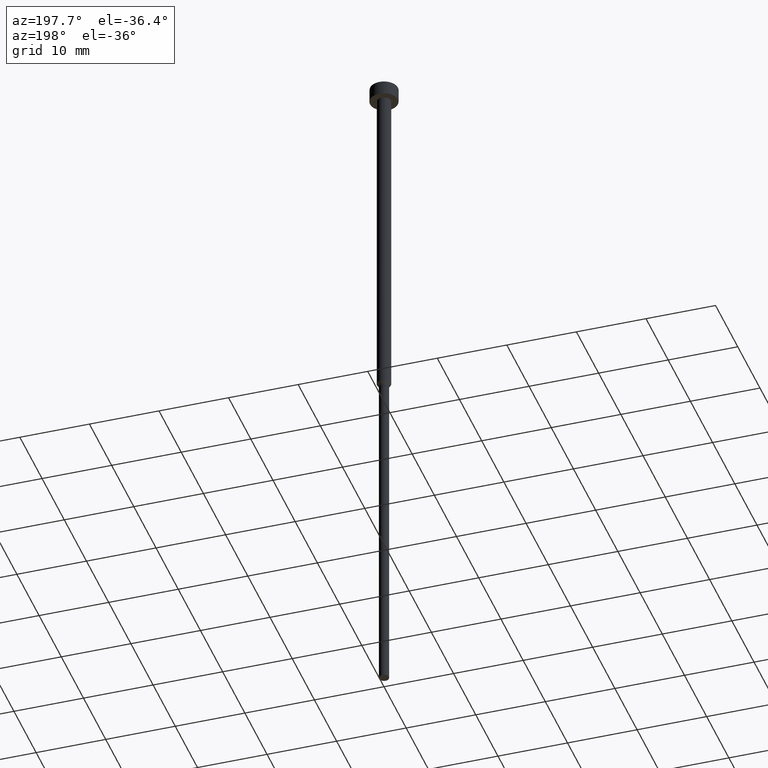
[diagram: clean part render]
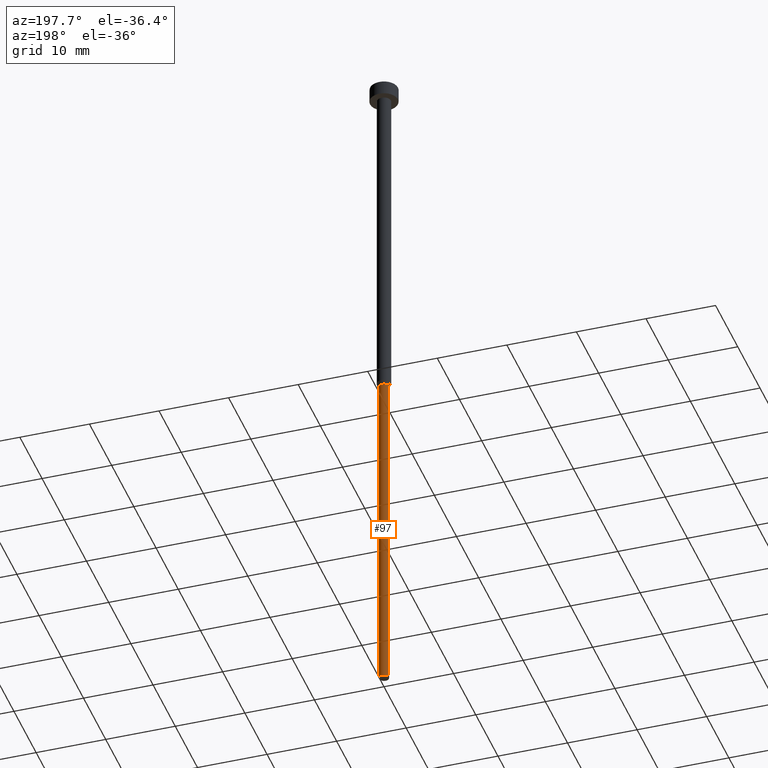
[diagram: same view with one face highlighted and labeled with its STEP entity id]
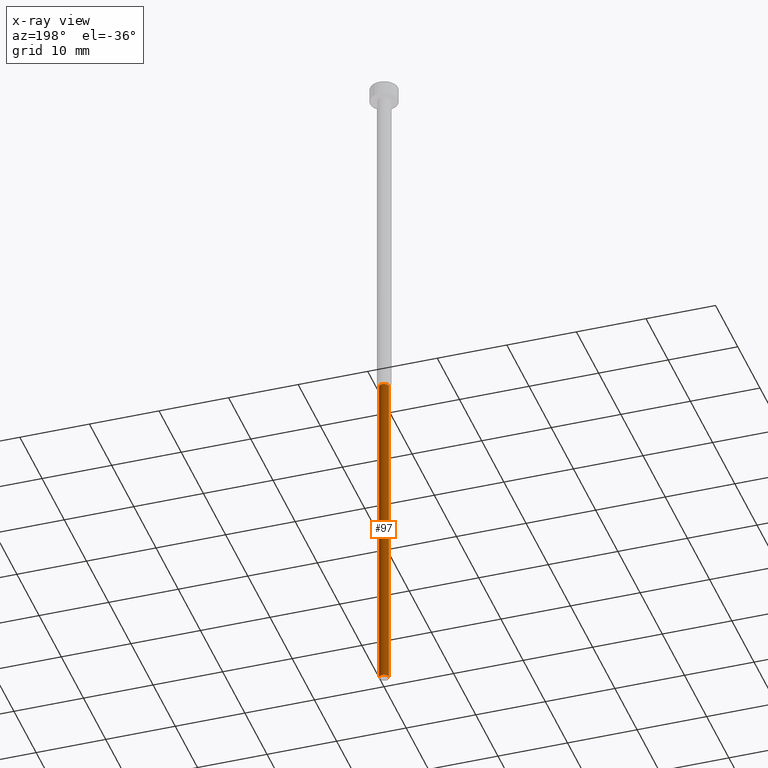
[diagram: x-ray of the same camera — body ghosted, the highlighted face saturated]
A machine part, auxiliary view. The second image highlights one B-rep face of the part: STEP entity #97.
The next image is the same camera in x-ray: the body ghosted, the highlighted face saturated — about 0% of this face is hidden behind the body in this view.
In plain terms, the highlighted cylindrical surface (edge-blend (fillet) strip) has radius 0.7 mm, axis along (-0, -0, 1).
Its self-contained STEP definition (entity closure, byte-faithful):
#1 = LINE ( 'NONE', #105, #323 ) ;
#20 = CARTESIAN_POINT ( 'NONE',  ( -0.6999999999999998446, 8.572527594031470725E-17, -100.0000000000000000 ) ) ;
#29 = CIRCLE ( 'NONE', #174, 0.6999999999999998446 ) ;
#49 = DIRECTION ( 'NONE',  ( 1.000000000000000000, 0.000000000000000000, 0.000000000000000000 ) ) ;
#58 = VECTOR ( 'NONE', #318, 1000.000000000000000 ) ;
#73 = DIRECTION ( 'NONE',  ( -0.000000000000000000, -0.000000000000000000, 1.000000000000000000 ) ) ;
#85 = ORIENTED_EDGE ( 'NONE', *, *, #151, .F. ) ;
#97 = ADVANCED_FACE ( 'NONE', ( #286 ), #204, .T. ) ;
#105 = CARTESIAN_POINT ( 'NONE',  ( -0.6999999999999998446, 8.572527594031470725E-17, 0.000000000000000000 ) ) ;
#115 = VERTEX_POINT ( 'NONE', #348 ) ;
#116 = AXIS2_PLACEMENT_3D ( 'NONE', #313, #187, #130 ) ;
#130 = DIRECTION ( 'NONE',  ( 1.000000000000000000, 0.000000000000000000, 0.000000000000000000 ) ) ;
#134 = VERTEX_POINT ( 'NONE', #183 ) ;
#137 = VERTEX_POINT ( 'NONE', #20 ) ;
#139 = DIRECTION ( 'NONE',  ( -0.000000000000000000, -0.000000000000000000, 1.000000000000000000 ) ) ;
#151 = EDGE_CURVE ( 'NONE', #190, #115, #220, .T. ) ;
#174 = AXIS2_PLACEMENT_3D ( 'NONE', #269, #307, #281 ) ;
#177 = EDGE_CURVE ( 'NONE', #134, #190, #321, .T. ) ;
#178 = ORIENTED_EDGE ( 'NONE', *, *, #349, .T. ) ;
#183 = CARTESIAN_POINT ( 'NONE',  ( 0.6999999999999998446, 0.000000000000000000, -100.0000000000000000 ) ) ;
#187 = DIRECTION ( 'NONE',  ( -0.000000000000000000, -0.000000000000000000, 1.000000000000000000 ) ) ;
#190 = VERTEX_POINT ( 'NONE', #332 ) ;
#202 = EDGE_LOOP ( 'NONE', ( #178, #304, #85, #249 ) ) ;
#204 = CYLINDRICAL_SURFACE ( 'NONE', #116, 0.6999999999999998446 ) ;
#220 = CIRCLE ( 'NONE', #271, 0.6999999999999999556 ) ;
#232 = CARTESIAN_POINT ( 'NONE',  ( 0.6999999999999998446, 0.000000000000000000, 0.000000000000000000 ) ) ;
#249 = ORIENTED_EDGE ( 'NONE', *, *, #177, .F. ) ;
#269 = CARTESIAN_POINT ( 'NONE',  ( 0.000000000000000000, 0.000000000000000000, -100.0000000000000000 ) ) ;
#271 = AXIS2_PLACEMENT_3D ( 'NONE', #314, #73, #49 ) ;
#281 = DIRECTION ( 'NONE',  ( 1.000000000000000000, 0.000000000000000000, 0.000000000000000000 ) ) ;
#286 = FACE_OUTER_BOUND ( 'NONE', #202, .T. ) ;
#304 = ORIENTED_EDGE ( 'NONE', *, *, #327, .T. ) ;
#307 = DIRECTION ( 'NONE',  ( -0.000000000000000000, -0.000000000000000000, 1.000000000000000000 ) ) ;
#313 = CARTESIAN_POINT ( 'NONE',  ( 0.000000000000000000, 0.000000000000000000, 0.000000000000000000 ) ) ;
#314 = CARTESIAN_POINT ( 'NONE',  ( 0.000000000000000000, 0.000000000000000000, -50.51961524227067457 ) ) ;
#318 = DIRECTION ( 'NONE',  ( -0.000000000000000000, -0.000000000000000000, 1.000000000000000000 ) ) ;
#321 = LINE ( 'NONE', #232, #58 ) ;
#323 = VECTOR ( 'NONE', #139, 1000.000000000000000 ) ;
#327 = EDGE_CURVE ( 'NONE', #137, #115, #1, .T. ) ;
#332 = CARTESIAN_POINT ( 'NONE',  ( 0.6999999999999999556, 0.000000000000000000, -50.51961524227067457 ) ) ;
#348 = CARTESIAN_POINT ( 'NONE',  ( -0.6999999999999999556, 8.572527594031473190E-17, -50.51961524227067457 ) ) ;
#349 = EDGE_CURVE ( 'NONE', #134, #137, #29, .T. ) ;